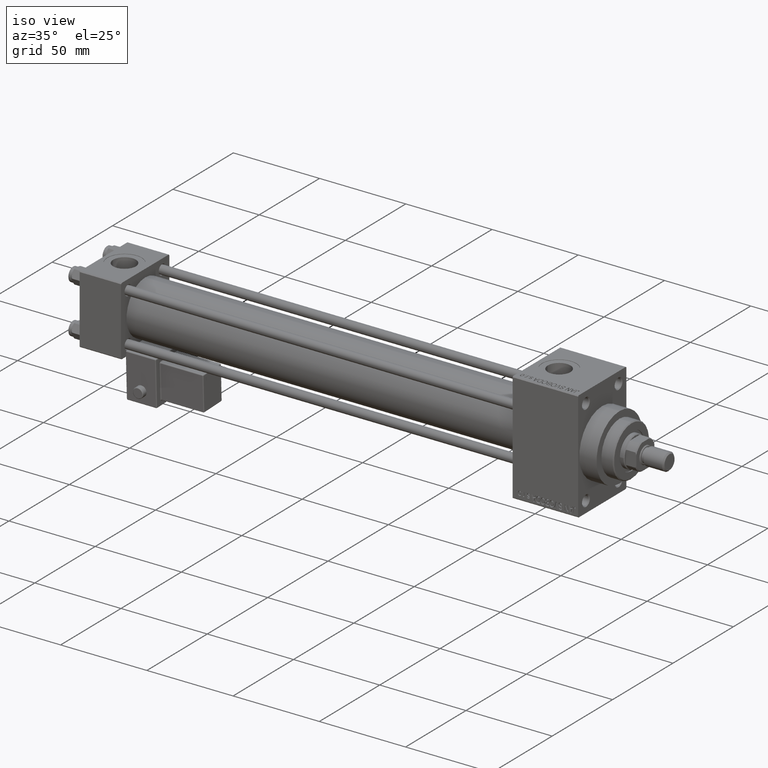
[diagram: clean part render]
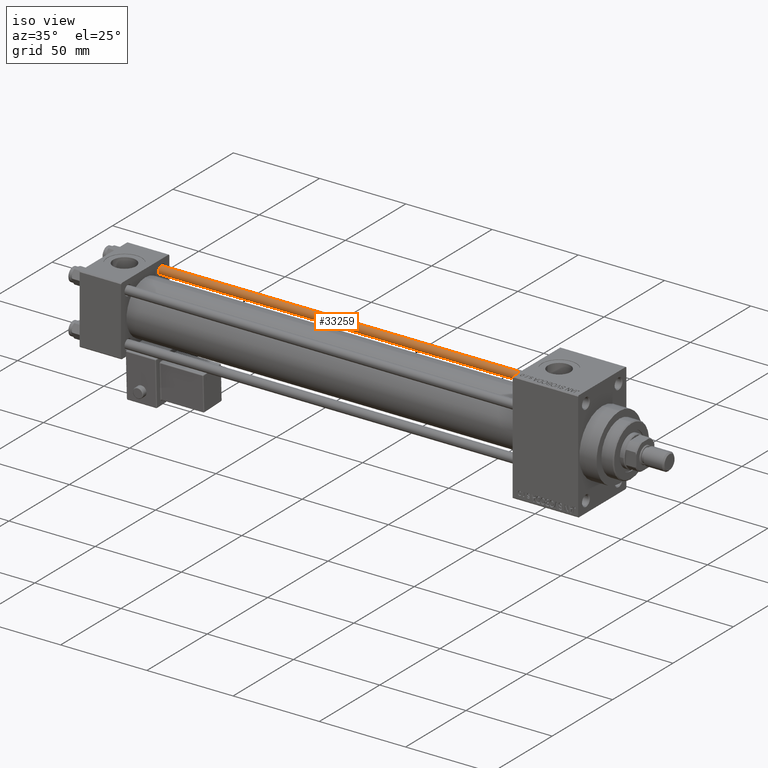
[diagram: same view with one face highlighted and labeled with its STEP entity id]
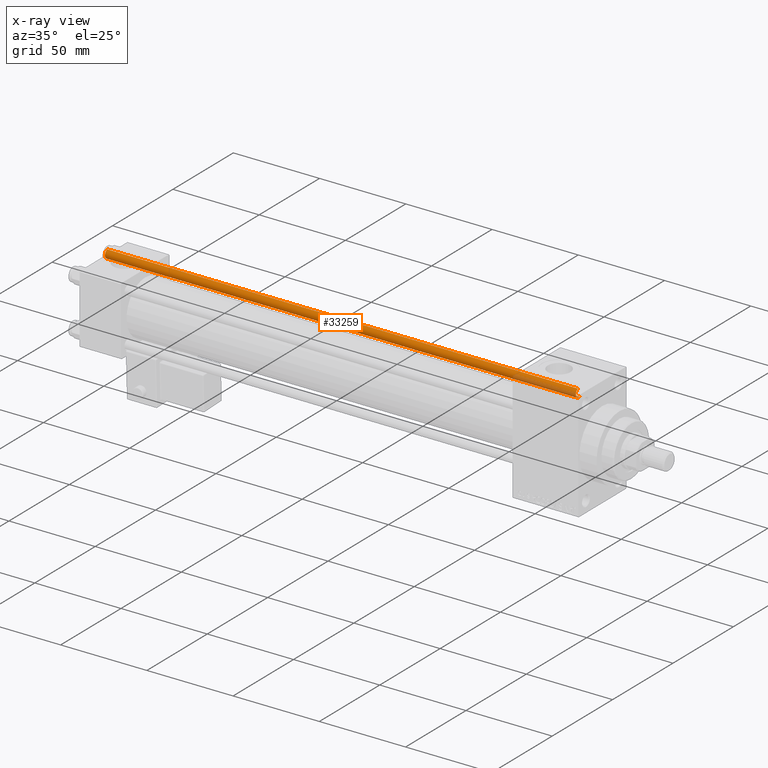
[diagram: x-ray of the same camera — body ghosted, the highlighted face saturated]
A machine part, iso view. The second image highlights one B-rep face of the part: STEP entity #33259.
The next image is the same camera in x-ray: the body ghosted, the highlighted face saturated — about 7% of this face is hidden behind the body in this view.
In plain terms, the highlighted cylindrical surface (edge-blend (fillet) strip) has radius 2.5 mm, axis along (-1, -0, 0).
Its self-contained STEP definition (entity closure, byte-faithful):
#1295 = VECTOR ( 'NONE', #13835, 1000.000000000000000 ) ;
#1872 = CARTESIAN_POINT ( 'NONE',  ( 2.500000000000000000, 3.061616997868383141E-16, 0.5000000000000004441 ) ) ;
#4075 = DIRECTION ( 'NONE',  ( 0.000000000000000000, 0.000000000000000000, -1.000000000000000000 ) ) ;
#4995 = CARTESIAN_POINT ( 'NONE',  ( 0.000000000000000000, 0.000000000000000000, 274.0000000000000000 ) ) ;
#5098 = AXIS2_PLACEMENT_3D ( 'NONE', #4995, #36907, #42127 ) ;
#5754 = LINE ( 'NONE', #21694, #1295 ) ;
#6228 = DIRECTION ( 'NONE',  ( -0.000000000000000000, -0.000000000000000000, -1.000000000000000000 ) ) ;
#8927 = FACE_OUTER_BOUND ( 'NONE', #16112, .T. ) ;
#13835 = DIRECTION ( 'NONE',  ( -0.000000000000000000, -0.000000000000000000, -1.000000000000000000 ) ) ;
#16112 = EDGE_LOOP ( 'NONE', ( #26344, #17619, #48230, #46598 ) ) ;
#16758 = EDGE_CURVE ( 'NONE', #34083, #25060, #49923, .T. ) ;
#17548 = CARTESIAN_POINT ( 'NONE',  ( 0.000000000000000000, 0.000000000000000000, 0.5000000000000004441 ) ) ;
#17619 = ORIENTED_EDGE ( 'NONE', *, *, #25675, .T. ) ;
#20006 = CARTESIAN_POINT ( 'NONE',  ( 0.000000000000000000, 0.000000000000000000, 273.5000000000000000 ) ) ;
#21163 = AXIS2_PLACEMENT_3D ( 'NONE', #17548, #29344, #33007 ) ;
#21694 = CARTESIAN_POINT ( 'NONE',  ( -2.500000000000000000, 0.000000000000000000, 274.0000000000000000 ) ) ;
#25060 = VERTEX_POINT ( 'NONE', #1872 ) ;
#25675 = EDGE_CURVE ( 'NONE', #34083, #48553, #29876, .T. ) ;
#26344 = ORIENTED_EDGE ( 'NONE', *, *, #16758, .F. ) ;
#29344 = DIRECTION ( 'NONE',  ( -0.000000000000000000, -0.000000000000000000, 1.000000000000000000 ) ) ;
#29876 = CIRCLE ( 'NONE', #37392, 2.500000000000000000 ) ;
#33007 = DIRECTION ( 'NONE',  ( 1.000000000000000000, 0.000000000000000000, 0.000000000000000000 ) ) ;
#33259 = ADVANCED_FACE ( 'NONE', ( #8927 ), #40851, .T. ) ;
#34083 = VERTEX_POINT ( 'NONE', #46959 ) ;
#36907 = DIRECTION ( 'NONE',  ( -0.000000000000000000, -0.000000000000000000, -1.000000000000000000 ) ) ;
#37157 = VECTOR ( 'NONE', #6228, 1000.000000000000000 ) ;
#37392 = AXIS2_PLACEMENT_3D ( 'NONE', #20006, #4075, #51423 ) ;
#40851 = CYLINDRICAL_SURFACE ( 'NONE', #5098, 2.500000000000000000 ) ;
#42127 = DIRECTION ( 'NONE',  ( -1.000000000000000000, 0.000000000000000000, 0.000000000000000000 ) ) ;
#42537 = EDGE_CURVE ( 'NONE', #50575, #25060, #43765, .T. ) ;
#43765 = CIRCLE ( 'NONE', #21163, 2.500000000000000000 ) ;
#44046 = CARTESIAN_POINT ( 'NONE',  ( -2.500000000000000000, 0.000000000000000000, 0.5000000000000004441 ) ) ;
#46002 = EDGE_CURVE ( 'NONE', #48553, #50575, #5754, .T. ) ;
#46251 = CARTESIAN_POINT ( 'NONE',  ( 2.500000000000000000, 3.061616997868383141E-16, 274.0000000000000000 ) ) ;
#46598 = ORIENTED_EDGE ( 'NONE', *, *, #42537, .T. ) ;
#46959 = CARTESIAN_POINT ( 'NONE',  ( 2.500000000000000000, 3.061616997868383141E-16, 273.5000000000000000 ) ) ;
#48230 = ORIENTED_EDGE ( 'NONE', *, *, #46002, .T. ) ;
#48553 = VERTEX_POINT ( 'NONE', #51731 ) ;
#49923 = LINE ( 'NONE', #46251, #37157 ) ;
#50575 = VERTEX_POINT ( 'NONE', #44046 ) ;
#51423 = DIRECTION ( 'NONE',  ( 1.000000000000000000, 0.000000000000000000, 0.000000000000000000 ) ) ;
#51731 = CARTESIAN_POINT ( 'NONE',  ( -2.500000000000000000, 0.000000000000000000, 273.5000000000000000 ) ) ;